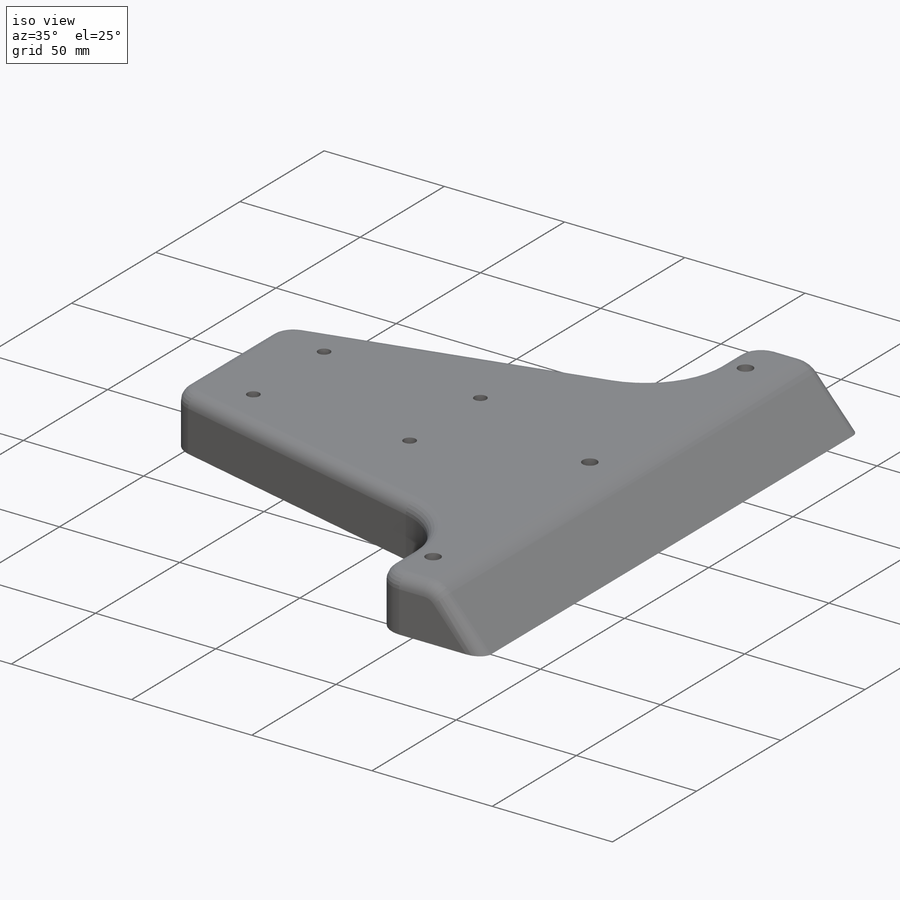
[diagram: iso view]
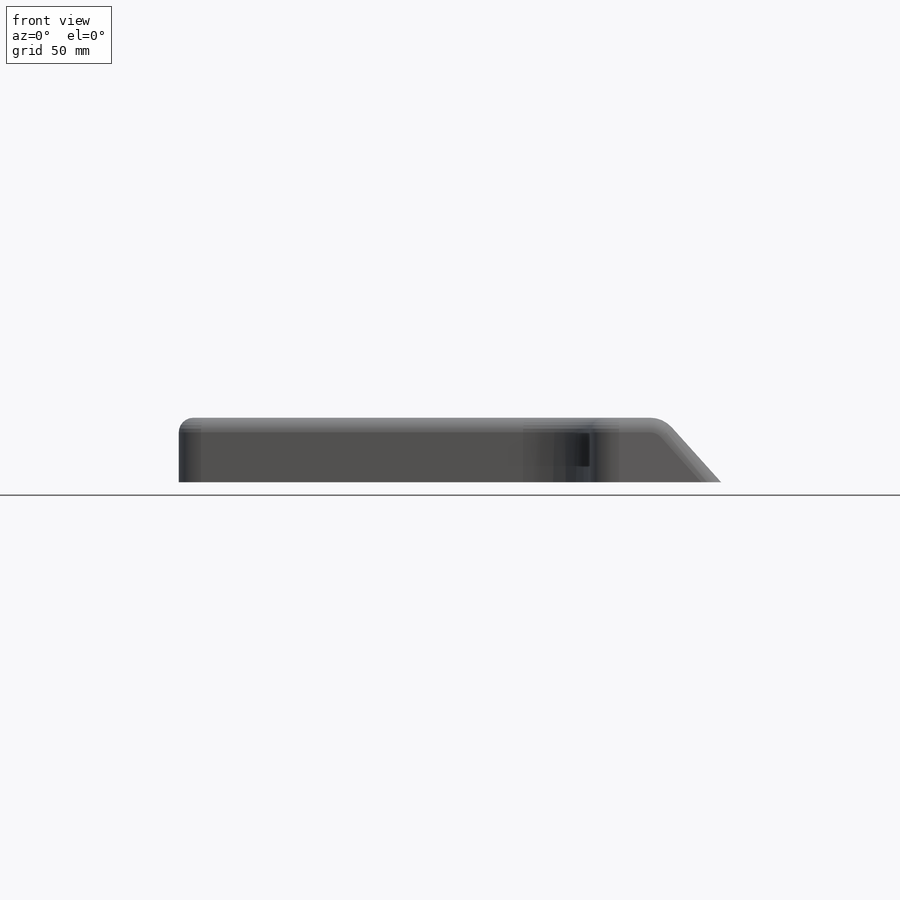
[diagram: front view]
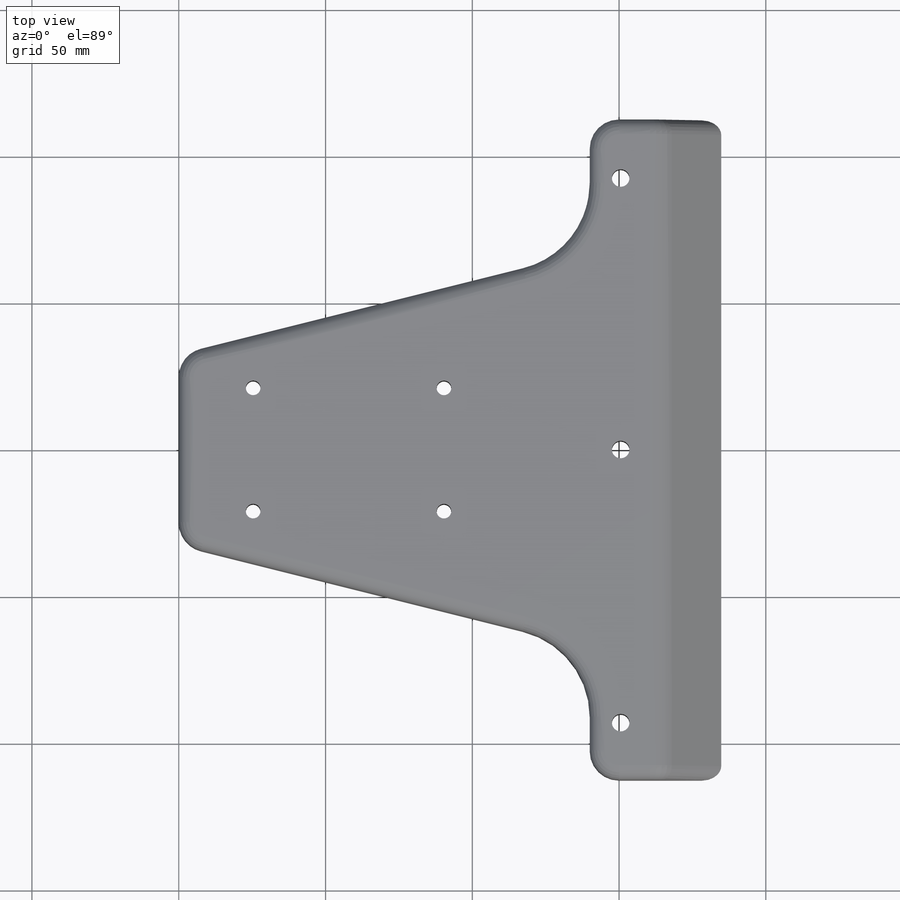
[diagram: top view]
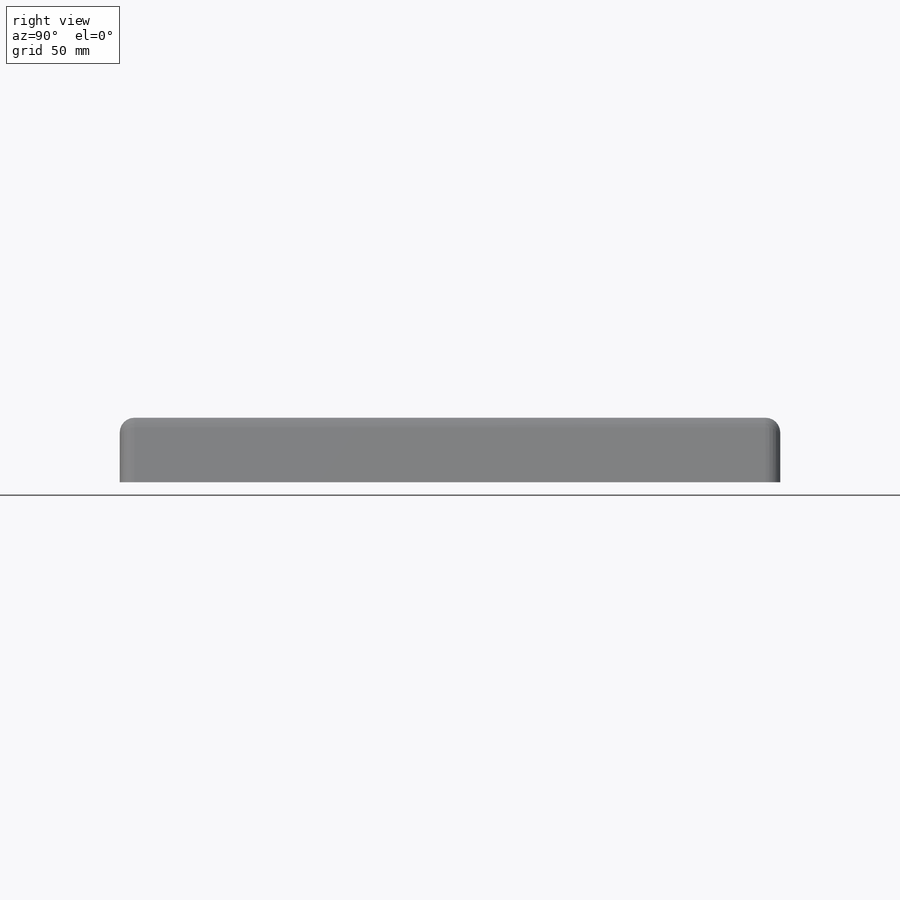
[diagram: right view]
SOLIDWORKS PART (.sldprt)
format: sldprt  version: not decoded by parser v0  size: 274,944 bytes
history: native  units: mm
features: fillet x4, sketch x3, cut_extrude x2, material x1, extrude x1, chamfer x1 (+12 scaffold rows collapsed)
feature tree (24):
  scaffold x12  (default folders/planes/origin — collapsed)
  material  "Material <not specified>"
  sketch  "Sketch1"  dims[D1=65.0mm D2=185.0mm D3=45.0mm D4=225.0mm D5=45.0mm]
  extrude  "Boss-Extrude1"  Depth=22mm
  fillet  "Fillet1"  Radius=30mm
  fillet  "Fillet2"  Radius=10mm
  sketch  "Sketch2"  dims[D1=5.0mm D2=5.0mm D3=5.0mm D4=5.0mm D5=65.0mm D6=65.0mm D7=42.0mm D8=~41.999974mm D9=~77.386222mm D10=~77.391023mm]
  cut_extrude  "Cut-Extrude1"  Depth=22mm
  chamfer  "Chamfer1"  Distance=20mm Angle=48deg
  fillet  "Fillet3"  Radius=10mm
  sketch  "Sketch3"  dims[c1.D3=6.0mm c1.D4=6.0mm c1.D5=6.0mm c1.D6=6.0mm c1.D7=6.0mm c1.D8=6.0mm c1.D1=20.0mm c1.D2=20.0mm c2.D6=10.0mm c2.D7=10.0mm c2.D8=10.0mm]
  cut_extrude  "Cut-Extrude3"  Depth=22mm
  fillet  "Fillet5"  Radius=5mm
decode coverage: 11 of 11 modeling features carry decoded parameters
note: ~ marks probable driven/reference dimensions
note: suppression state not decoded; provenance and decode notes live in map.json
